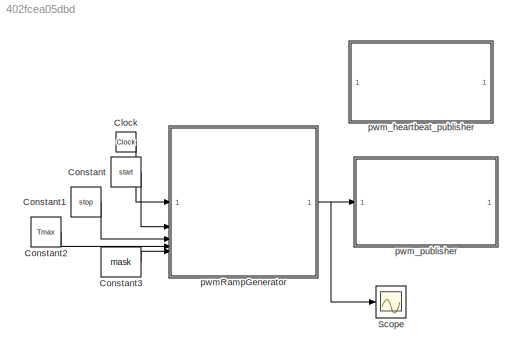
MODEL slx_402fcea05dbd
KIND model
CONFIG AbsTol = auto
CONFIG EnableMultiTasking = off
CONFIG FixedStep = dt_control
CONFIG MaxStep = auto
CONFIG MinStep = auto
CONFIG RelTol = 1e-3
CONFIG SampleTimeConstraint = Unconstrained
CONFIG SolverName = FixedStepDiscrete
CONFIG StartTime = 0.0
CONFIG StopTime = tspan
BLOCK [Clock] Clock
BLOCK [Constant] Constant
  Value = start
BLOCK [Constant] Constant1
  Value = stop
BLOCK [Constant] Constant2
  Value = Tmax
BLOCK [Constant] Constant3
  Value = mask
BLOCK [Scope] Scope
  ActiveDisplayYMaximum = 1725
  ActiveDisplayYMinimum = 1475
  Floating = off
  GraphicalSettings = {"Style":{"BackgroundColor":[0.12941176470588237,0.12941176470588237,0.12941176470588237],"AxesColor":[0.07058823529411765,0.07058823529411765,0.07058823529411765],"LabelsColor":[0.8509803921568627,0.8509803921568627,0.8509803921568627],"PreserveColors":false,"Visible":[true,true,true,true,true,true,true,true],"LineStyle":["-","-","-","-","-","-","-","-"],"LineWidth":[1.5,1.5,1.5,1.5,1.5,1.5,1.5,1...<+2838ch>
  MultipleDisplayCache = [{"MaxYLimMag":1725,"MaxYLimReal":1725,"MinYLimMag":1475,"MinYLimReal":1475,"PlotAsMagnitudePhase":false,"ShowGrid":true,"ShowLegend":false,"Title":"%<SignalLabel>","YLabel":""}]
  NumInputPorts = 1
  ScopeFrameLocation = window
  WasSavedAsWebScope = on
  WindowPosition = [680.000000,554.000000,561.000000,420.000000,]
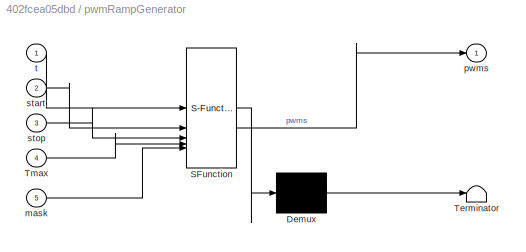
BLOCK [SubSystem] pwmRampGenerator
  ErrorFcn = Stateflow.Translate.translate
  PermitHierarchicalResolution = ExplicitOnly
  SFBlockType = MATLAB Function
  SystemSampleTime = dt_control
  TreatAsAtomicUnit = on
BLOCK [Demux] pwmRampGenerator/ Demux 
  Outputs = 1
BLOCK [S-Function] pwmRampGenerator/ SFunction 
  EnableBusSupport = off
  FunctionName = sf_sfun
  PortCounts = [5 2]
  SFcnIsStateOwnerBlock = off
  SFunctionDeploymentMode = off
  Tag = Stateflow S-Function 2
BLOCK [Terminator] pwmRampGenerator/ Terminator 
BLOCK [Inport] pwmRampGenerator/Tmax
  Port = 4
BLOCK [Inport] pwmRampGenerator/mask
  Port = 5
BLOCK [Outport] pwmRampGenerator/pwms
BLOCK [Inport] pwmRampGenerator/start
  Port = 2
BLOCK [Inport] pwmRampGenerator/stop
  Port = 3
BLOCK [Inport] pwmRampGenerator/t
BLOCK [SubSystem] pwm_heartbeat_publisher
  ReferencedSubsystem = pwm_heartbeat_publisher
BLOCK [SubSystem] pwm_publisher
  ReferencedSubsystem = pwm_publisher
LINE Clock:1 -> pwmRampGenerator:1
LINE Constant1:1 -> pwmRampGenerator:3
LINE Constant2:1 -> pwmRampGenerator:4
LINE Constant3:1 -> pwmRampGenerator:5
LINE Constant:1 -> pwmRampGenerator:2
NET pwmRampGenerator:1 -> Scope:1, pwm_publisher:1
note: NET lines group one-source signal fan-out (src -> all destinations, sorted); 1:1 wires keep LINE
CHART pwmRampGenerator states=1 transitions=1
  STATE_LABEL 'eML_blk_kernel()'
  STATE_LABEL 'SCRIPT:\nfunction pwms = fcn(t, start, stop, Tmax, mask)\n\npwms = pwmRampGenerator(t, start, stop, Tmax, mask);'
CHART  states=0 transitions=0
